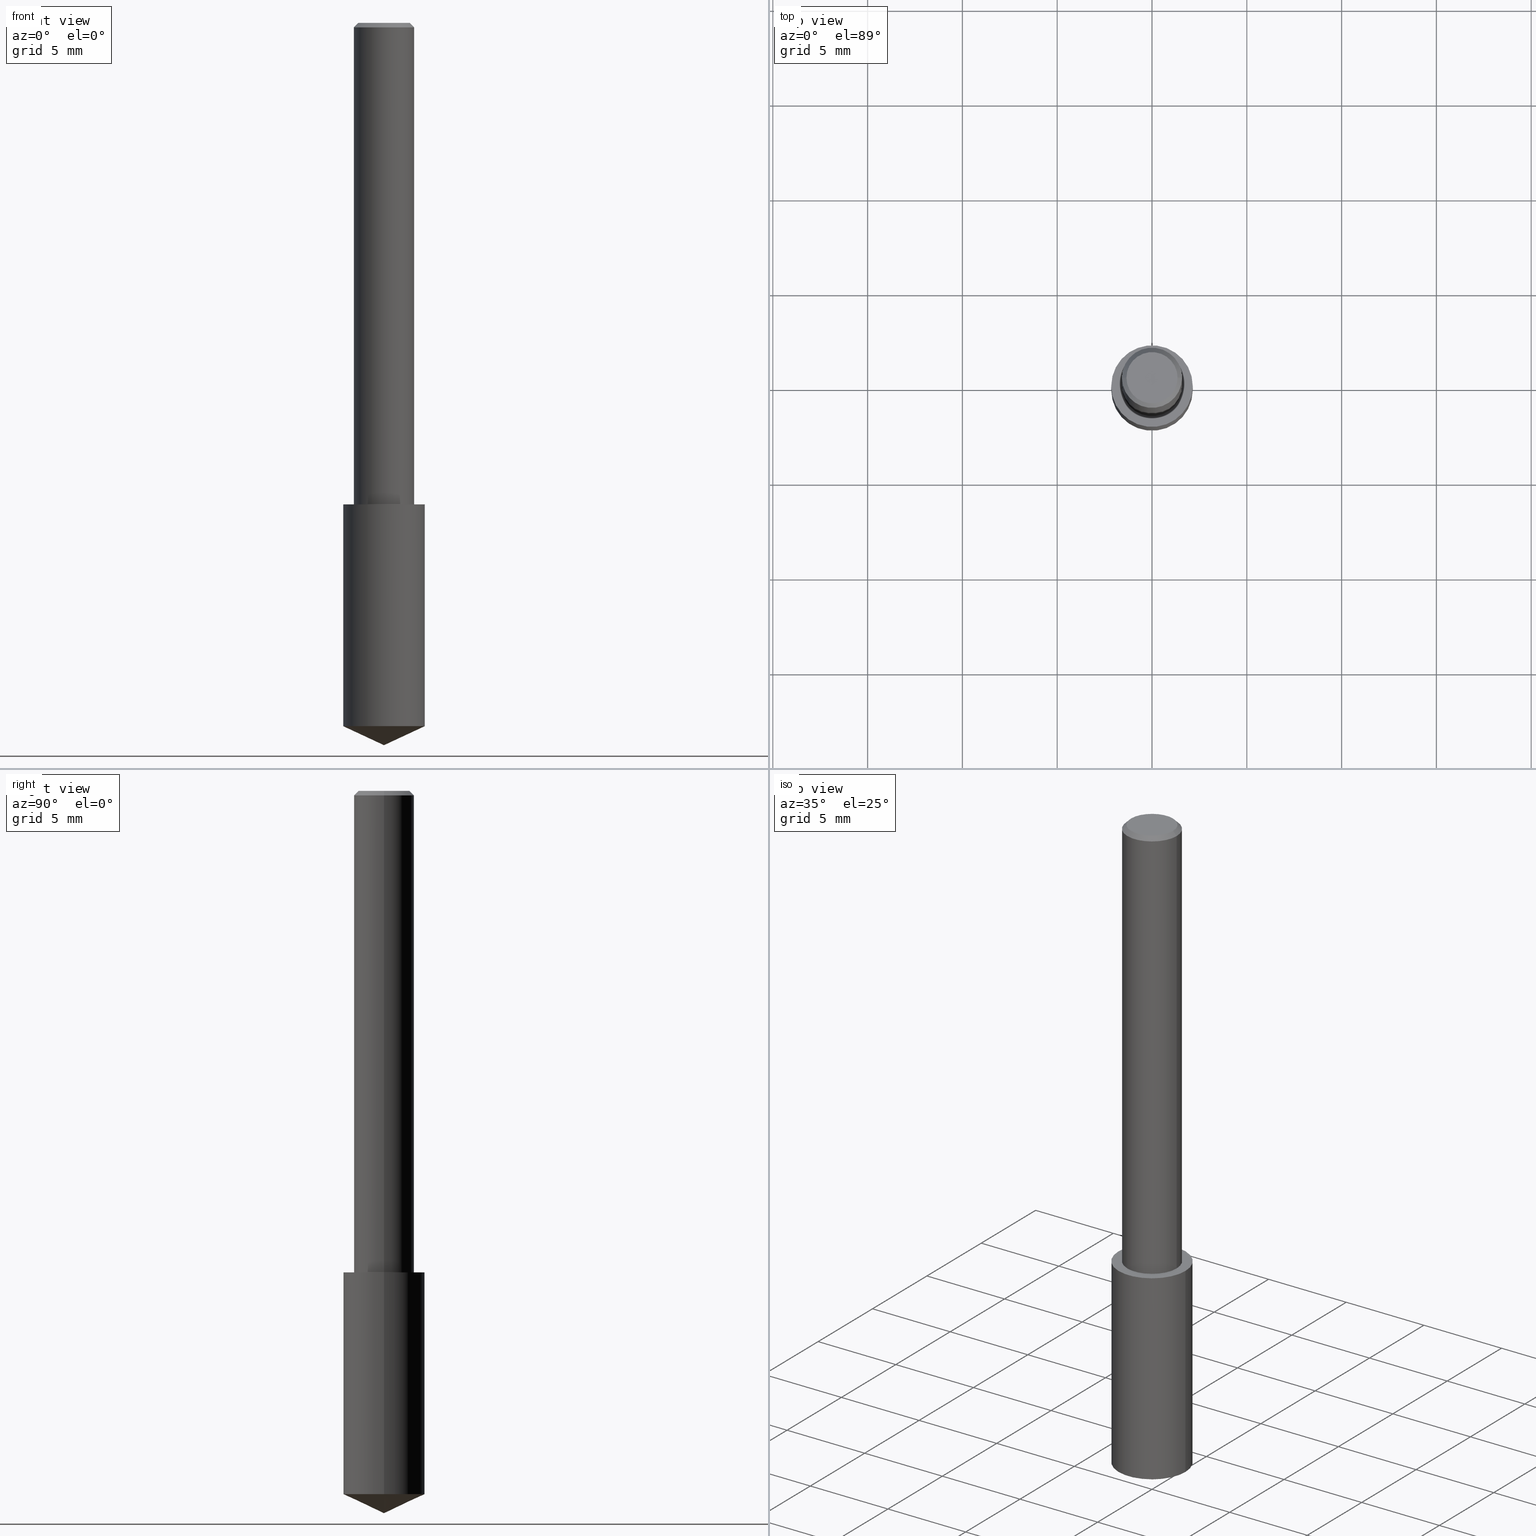
[diagram: canonical four-view strip — front | top / right | iso, engineering-drawing reading convention]
A machine part, canonical four-view strip (front | top / right | iso — engineering-drawing reading convention). The complete STEP part file that produces these views, byte-faithful:
ISO-10303-21;
HEADER;
FILE_DESCRIPTION (( 'STEP AP203' ),
    '1' );
FILE_NAME ('06105.STEP',
    '2024-04-30T18:20:42',
    ( '' ),
    ( '' ),
    'SwSTEP 2.0',
    'SolidWorks 2023',
    '' );
FILE_SCHEMA (( 'CONFIG_CONTROL_DESIGN' ));
ENDSEC;

DATA;
#1 = DIRECTION ( 'NONE',  ( -2.445468806185136597E-29, 3.491481338843145583E-15, 1.000000000000000000 ) ) ;
#2 = APPROVAL_ROLE ( '' ) ;
#3 = ORIENTED_EDGE ( 'NONE', *, *, #304, .T. ) ;
#4 = CALENDAR_DATE ( 2024, 30, 4 ) ;
#5 = AXIS2_PLACEMENT_3D ( 'NONE', #202, #18, #180 ) ;
#6 =( GEOMETRIC_REPRESENTATION_CONTEXT ( 3 ) GLOBAL_UNCERTAINTY_ASSIGNED_CONTEXT ( ( #278 ) ) GLOBAL_UNIT_ASSIGNED_CONTEXT ( ( #165, #98, #265 ) ) REPRESENTATION_CONTEXT ( 'NONE', 'WORKASPACE' ) );
#7 = COORDINATED_UNIVERSAL_TIME_OFFSET ( 5, 0, .BEHIND. ) ;
#8 = PRODUCT_RELATED_PRODUCT_CATEGORY ( 'detail', '', ( #251 ) ) ;
#9 = PERSON_AND_ORGANIZATION_ROLE ( 'design_owner' ) ;
#10 = ORIENTED_EDGE ( 'NONE', *, *, #247, .F. ) ;
#11 = CIRCLE ( 'NONE', #110, 0.06250000000000000000 ) ;
#12 = EDGE_CURVE ( 'NONE', #134, #55, #68, .T. ) ;
#13 = EDGE_LOOP ( 'NONE', ( #170, #178, #299, #275 ) ) ;
#14 = CARTESIAN_POINT ( 'NONE',  ( 3.571673357840160726E-29, -5.099402963473365069E-15, -1.460527056737179308 ) ) ;
#15 = FACE_OUTER_BOUND ( 'NONE', #109, .T. ) ;
#16 = VECTOR ( 'NONE', #305, 39.37007874015748143 ) ;
#17 = ORGANIZATION ( 'UNSPECIFIED', 'UNSPECIFIED', '' ) ;
#18 = DIRECTION ( 'NONE',  ( 2.445468806185136597E-29, -3.491481338843145583E-15, -1.000000000000000000 ) ) ;
#19 = ADVANCED_FACE ( 'NONE', ( #254 ), #26, .T. ) ;
#20 = DIRECTION ( 'NONE',  ( 1.000000000000000000, -6.982962677686266711E-15, 4.876176775795935793E-29 ) ) ;
#21 = ADVANCED_FACE ( 'NONE', ( #15 ), #204, .T. ) ;
#22 = DIRECTION ( 'NONE',  ( -1.000000000000000000, 6.982962677686265922E-15, -4.876176775795935793E-29 ) ) ;
#23 = ORIENTED_EDGE ( 'NONE', *, *, #12, .T. ) ;
#24 = VERTEX_POINT ( 'NONE', #231 ) ;
#25 = DIRECTION ( 'NONE',  ( -2.445468806185136597E-29, 3.491481338843145583E-15, 1.000000000000000000 ) ) ;
#26 = CONICAL_SURFACE ( 'NONE', #5, 0.06250000000000000000, 0.7853981633974450594 ) ;
#27 = DIRECTION ( 'NONE',  ( 0.9063077870366489375, -4.853149677051365379E-15, 0.4226182617407013842 ) ) ;
#28 = FACE_OUTER_BOUND ( 'NONE', #53, .T. ) ;
#29 = DATE_TIME_ROLE ( 'classification_date' ) ;
#30 = DATE_AND_TIME ( #99, #145 ) ;
#31 = AXIS2_PLACEMENT_3D ( 'NONE', #131, #125, #316 ) ;
#32 = ORIENTED_EDGE ( 'NONE', *, *, #94, .F. ) ;
#33 = ADVANCED_FACE ( 'NONE', ( #144 ), #58, .T. ) ;
#34 = ORIENTED_EDGE ( 'NONE', *, *, #75, .F. ) ;
#35 = CIRCLE ( 'NONE', #42, 0.08465000000000001690 ) ;
#36 = EDGE_CURVE ( 'NONE', #82, #76, #227, .T. ) ;
#37 = CC_DESIGN_DATE_AND_TIME_ASSIGNMENT ( #323, #29, ( #339 ) ) ;
#38 = FACE_OUTER_BOUND ( 'NONE', #222, .T. ) ;
#39 = CYLINDRICAL_SURFACE ( 'NONE', #319, 0.08465000000000001690 ) ;
#40 = FACE_OUTER_BOUND ( 'NONE', #276, .T. ) ;
#41 = AXIS2_PLACEMENT_3D ( 'NONE', #114, #115, #256 ) ;
#42 = AXIS2_PLACEMENT_3D ( 'NONE', #262, #25, #237 ) ;
#43 = DIRECTION ( 'NONE',  ( 1.000000000000000000, -6.982962677686266711E-15, 4.876176775795935793E-29 ) ) ;
#44 = AXIS2_PLACEMENT_3D ( 'NONE', #241, #1, #46 ) ;
#45 = APPROVAL_DATE_TIME ( #106, #329 ) ;
#46 = DIRECTION ( 'NONE',  ( 1.000000000000000000, -6.982962677686264344E-15, 0.000000000000000000 ) ) ;
#47 = APPROVAL_STATUS ( 'not_yet_approved' ) ;
#48 = ORIENTED_EDGE ( 'NONE', *, *, #70, .T. ) ;
#49 = CALENDAR_DATE ( 2024, 30, 4 ) ;
#50 = VECTOR ( 'NONE', #153, 39.37007874015748143 ) ;
#51 = ORIENTED_EDGE ( 'NONE', *, *, #36, .F. ) ;
#52 = DATE_AND_TIME ( #49, #295 ) ;
#53 = EDGE_LOOP ( 'NONE', ( #174, #257, #219, #224 ) ) ;
#54 = ORIENTED_EDGE ( 'NONE', *, *, #70, .F. ) ;
#55 = VERTEX_POINT ( 'NONE', #229 ) ;
#56 = DIRECTION ( 'NONE',  ( -2.445468806185136597E-29, 3.491481338843145583E-15, 1.000000000000000000 ) ) ;
#57 = CIRCLE ( 'NONE', #44, 0.06250000000000012490 ) ;
#58 = CYLINDRICAL_SURFACE ( 'NONE', #179, 0.08465000000000001690 ) ;
#59 = CC_DESIGN_PERSON_AND_ORGANIZATION_ASSIGNMENT ( #240, #315, ( #206 ) ) ;
#60 = CARTESIAN_POINT ( 'NONE',  ( 2.445468806185137438E-29, -3.491481338843146371E-15, -1.000000000000000222 ) ) ;
#61 = MANIFOLD_SOLID_BREP ( 'Body-Move/Copy2[2]', #197 ) ;
#62 = CARTESIAN_POINT ( 'NONE',  ( 3.668203209277704895E-29, -5.237222008264718177E-15, -1.500000000000000222 ) ) ;
#63 = LOCAL_TIME ( 14, 20, 42.00000000000000000, #246 ) ;
#64 = DIRECTION ( 'NONE',  ( -1.000000000000000000, 6.982962677686266711E-15, 0.000000000000000000 ) ) ;
#65 = ADVANCED_FACE ( 'NONE', ( #86 ), #250, .T. ) ;
#66 = FACE_OUTER_BOUND ( 'NONE', #226, .T. ) ;
#67 = CARTESIAN_POINT ( 'NONE',  ( 0.06250000000000000000, -4.615137624123754923E-16, -0.009375000000000063838 ) ) ;
#68 = CIRCLE ( 'NONE', #306, 0.06250000000000012490 ) ;
#69 = VECTOR ( 'NONE', #27, 39.37007874015748854 ) ;
#70 = EDGE_CURVE ( 'NONE', #203, #149, #11, .T. ) ;
#71 = DIRECTION ( 'NONE',  ( 2.438088387897960049E-29, -3.491481338843145188E-15, -1.000000000000000000 ) ) ;
#72 = DIRECTION ( 'NONE',  ( -2.445468806185136597E-29, 3.491481338843145583E-15, 1.000000000000000000 ) ) ;
#73 = CARTESIAN_POINT ( 'NONE',  ( -7.487088864773345706E-50, 1.068957861474247695E-35, 3.061616997868395197E-21 ) ) ;
#74 = APPROVAL_PERSON_ORGANIZATION ( #132, #324, #2 ) ;
#75 = EDGE_CURVE ( 'NONE', #81, #82, #113, .T. ) ;
#76 = VERTEX_POINT ( 'NONE', #234 ) ;
#77 = PERSON_AND_ORGANIZATION ( #123, #17 ) ;
#78 = EDGE_CURVE ( 'NONE', #55, #203, #280, .T. ) ;
#79 = ORIENTED_EDGE ( 'NONE', *, *, #288, .F. ) ;
#80 = APPROVAL_ROLE ( '' ) ;
#81 = VERTEX_POINT ( 'NONE', #62 ) ;
#82 = VERTEX_POINT ( 'NONE', #120 ) ;
#83 = ORIENTED_EDGE ( 'NONE', *, *, #159, .T. ) ;
#84 = DIRECTION ( 'NONE',  ( -2.445468806185136597E-29, 3.491481338843145583E-15, 1.000000000000000000 ) ) ;
#85 = CC_DESIGN_SECURITY_CLASSIFICATION ( #339, ( #206 ) ) ;
#86 = FACE_OUTER_BOUND ( 'NONE', #298, .T. ) ;
#87 = VERTEX_POINT ( 'NONE', #152 ) ;
#88 = ADVANCED_FACE ( 'NONE', ( #38 ), #259, .T. ) ;
#89 = LINE ( 'NONE', #271, #69 ) ;
#90 = DIRECTION ( 'NONE',  ( 1.000000000000000000, -6.982962677686266711E-15, 4.876176628004948512E-29 ) ) ;
#91 = EDGE_LOOP ( 'NONE', ( #277, #143, #48, #244 ) ) ;
#92 = DIRECTION ( 'NONE',  ( -2.445468806185136597E-29, 3.491481338843145583E-15, 1.000000000000000000 ) ) ;
#93 = DIRECTION ( 'NONE',  ( -2.445468806185136597E-29, 3.491481338843145583E-15, 1.000000000000000000 ) ) ;
#94 = EDGE_CURVE ( 'NONE', #134, #149, #309, .T. ) ;
#95 = DIRECTION ( 'NONE',  ( 1.000000000000000000, -6.982962677686269077E-15, 0.000000000000000000 ) ) ;
#96 = AXIS2_PLACEMENT_3D ( 'NONE', #290, #71, #22 ) ;
#97 = CYLINDRICAL_SURFACE ( 'NONE', #139, 0.06250000000000006939 ) ;
#98 =( NAMED_UNIT ( * ) PLANE_ANGLE_UNIT ( ) SI_UNIT ( $, .RADIAN. ) );
#99 = CALENDAR_DATE ( 2024, 30, 4 ) ;
#100 = DIRECTION ( 'NONE',  ( 1.000000000000000000, -6.982962677686266711E-15, 0.000000000000000000 ) ) ;
#101 = CC_DESIGN_PERSON_AND_ORGANIZATION_ASSIGNMENT ( #77, #166, ( #206 ) ) ;
#102 = DIRECTION ( 'NONE',  ( 1.000000000000000000, -6.982962677686266711E-15, 4.876176628004948512E-29 ) ) ;
#103 = EDGE_LOOP ( 'NONE', ( #148, #83 ) ) ;
#104 = AXIS2_PLACEMENT_3D ( 'NONE', #163, #72, #102 ) ;
#105 = PERSON_AND_ORGANIZATION ( #123, #17 ) ;
#106 = DATE_AND_TIME ( #195, #307 ) ;
#107 = APPROVAL_STATUS ( 'not_yet_approved' ) ;
#108 = ADVANCED_FACE ( 'NONE', ( #66 ), #97, .T. ) ;
#109 = EDGE_LOOP ( 'NONE', ( #34, #293, #51 ) ) ;
#110 = AXIS2_PLACEMENT_3D ( 'NONE', #205, #302, #175 ) ;
#111 = DIRECTION ( 'NONE',  ( 0.000000000000000000, 0.000000000000000000, 1.000000000000000000 ) ) ;
#112 = ORIENTED_EDGE ( 'NONE', *, *, #300, .T. ) ;
#113 = LINE ( 'NONE', #182, #160 ) ;
#114 = CARTESIAN_POINT ( 'NONE',  ( -9.261009624683002666E-28, 1.322226732217803884E-13, 37.87007874015748143 ) ) ;
#115 = DIRECTION ( 'NONE',  ( -2.445468806185136597E-29, 3.491481338843145583E-15, 1.000000000000000000 ) ) ;
#116 = VECTOR ( 'NONE', #284, 39.37007874015748143 ) ;
#117 = DIRECTION ( 'NONE',  ( 1.000000000000000000, -6.982962677686263555E-15, 0.000000000000000000 ) ) ;
#118 = ORIENTED_EDGE ( 'NONE', *, *, #94, .T. ) ;
#119 = ADVANCED_FACE ( 'NONE', ( #155 ), #310, .F. ) ;
#120 = CARTESIAN_POINT ( 'NONE',  ( -0.08464999999999998914, -4.497928537652440240E-15, -1.460527056737179308 ) ) ;
#121 = AXIS2_PLACEMENT_3D ( 'NONE', #209, #308, #64 ) ;
#122 = DIRECTION ( 'NONE',  ( -0.7071067811865452413, 2.468850131082233000E-15, -0.7071067811865497932 ) ) ;
#123 = PERSON ( 'UNSPECIFIED', 'UNSPECIFIED', 'UNSPECIFIED', ('UNSPECIFIED'), ('UNSPECIFIED'), ('UNSPECIFIED') ) ;
#124 = CARTESIAN_POINT ( 'NONE',  ( 0.000000000000000000, 0.000000000000000000, 0.000000000000000000 ) ) ;
#125 = DIRECTION ( 'NONE',  ( 2.438088387897960049E-29, -3.491481338843145188E-15, -1.000000000000000000 ) ) ;
#126 = DIRECTION ( 'NONE',  ( 1.000000000000000000, -6.982962677686265922E-15, 4.876176775795935793E-29 ) ) ;
#127 = EDGE_CURVE ( 'NONE', #76, #82, #334, .T. ) ;
#128 = LINE ( 'NONE', #67, #214 ) ;
#129 = CARTESIAN_POINT ( 'NONE',  ( 0.08465000000000001690, -4.082589129509289174E-15, -1.000000000000000222 ) ) ;
#130 = DATE_AND_TIME ( #4, #63 ) ;
#131 = CARTESIAN_POINT ( 'NONE',  ( -3.743544432386672853E-50, 5.344789307371238476E-36, 1.530808498934197599E-21 ) ) ;
#132 = PERSON_AND_ORGANIZATION ( #123, #17 ) ;
#133 = APPLICATION_PROTOCOL_DEFINITION ( 'international standard', 'config_control_design', 1994, #321 ) ;
#134 = VERTEX_POINT ( 'NONE', #266 ) ;
#135 = PERSON_AND_ORGANIZATION ( #123, #17 ) ;
#136 = LINE ( 'NONE', #239, #301 ) ;
#137 = AXIS2_PLACEMENT_3D ( 'NONE', #14, #208, #230 ) ;
#138 = ORIENTED_EDGE ( 'NONE', *, *, #296, .T. ) ;
#139 = AXIS2_PLACEMENT_3D ( 'NONE', #213, #186, #43 ) ;
#140 = APPROVAL_STATUS ( 'not_yet_approved' ) ;
#141 = APPLICATION_PROTOCOL_DEFINITION ( 'international standard', 'config_control_design', 1994, #336 ) ;
#142 = VERTEX_POINT ( 'NONE', #129 ) ;
#143 = ORIENTED_EDGE ( 'NONE', *, *, #211, .T. ) ;
#144 = FACE_OUTER_BOUND ( 'NONE', #167, .T. ) ;
#145 = LOCAL_TIME ( 14, 20, 42.00000000000000000, #168 ) ;
#146 = ADVANCED_BREP_SHAPE_REPRESENTATION ( '06105', ( #294, #61, #171 ), #6 ) ;
#147 = DIRECTION ( 'NONE',  ( 1.000000000000000000, -6.982962677686264344E-15, 0.000000000000000000 ) ) ;
#148 = ORIENTED_EDGE ( 'NONE', *, *, #191, .T. ) ;
#149 = VERTEX_POINT ( 'NONE', #215 ) ;
#150 = ADVANCED_FACE ( 'NONE', ( #184 ), #193, .T. ) ;
#151 = CC_DESIGN_APPROVAL ( #176, ( #206 ) ) ;
#152 = CARTESIAN_POINT ( 'NONE',  ( 0.05312499999999999861, -4.129888592719939842E-16, 3.061617000609493422E-21 ) ) ;
#153 = DIRECTION ( 'NONE',  ( -2.445468806185136877E-29, 3.491481338843145188E-15, 1.000000000000000000 ) ) ;
#154 = CC_DESIGN_PERSON_AND_ORGANIZATION_ASSIGNMENT ( #105, #291, ( #339 ) ) ;
#155 = FACE_OUTER_BOUND ( 'NONE', #200, .T. ) ;
#156 = LENGTH_MEASURE_WITH_UNIT ( LENGTH_MEASURE( 0.02539999999999999897 ), #340 );
#157 = DIRECTION ( 'NONE',  ( -2.438088387897960049E-29, 3.491481338843145188E-15, 1.000000000000000000 ) ) ;
#158 = CARTESIAN_POINT ( 'NONE',  ( 2.445468806185136877E-29, -3.491481338843145977E-15, -1.000000000000000222 ) ) ;
#159 = EDGE_CURVE ( 'NONE', #87, #24, #218, .T. ) ;
#160 = VECTOR ( 'NONE', #183, 39.37007874015748854 ) ;
#161 = CARTESIAN_POINT ( 'NONE',  ( -0.08465000000000001690, -3.693967725337331089E-15, -1.000000000000000222 ) ) ;
#162 = APPROVAL_PERSON_ORGANIZATION ( #220, #176, #317 ) ;
#163 = CARTESIAN_POINT ( 'NONE',  ( -7.487088864773345706E-50, 1.068957861474247695E-35, 3.061616997868395197E-21 ) ) ;
#164 = SHAPE_DEFINITION_REPRESENTATION ( #255, #146 ) ;
#165 =( CONVERSION_BASED_UNIT ( 'INCH', #156 ) LENGTH_UNIT ( ) NAMED_UNIT ( #177 ) );
#166 = PERSON_AND_ORGANIZATION_ROLE ( 'design_supplier' ) ;
#167 = EDGE_LOOP ( 'NONE', ( #10, #285, #138, #248 ) ) ;
#168 = COORDINATED_UNIVERSAL_TIME_OFFSET ( 5, 0, .BEHIND. ) ;
#169 = AXIS2_PLACEMENT_3D ( 'NONE', #303, #84, #330 ) ;
#170 = ORIENTED_EDGE ( 'NONE', *, *, #211, .F. ) ;
#171 = AXIS2_PLACEMENT_3D ( 'NONE', #320, #111, #223 ) ;
#172 = ORIENTED_EDGE ( 'NONE', *, *, #273, .F. ) ;
#173 = APPROVAL_DATE_TIME ( #52, #176 ) ;
#174 = ORIENTED_EDGE ( 'NONE', *, *, #127, .T. ) ;
#175 = DIRECTION ( 'NONE',  ( 1.000000000000000000, -6.982962677686266711E-15, 0.000000000000000000 ) ) ;
#176 = APPROVAL ( #47, 'UNSPECIFIED' ) ;
#177 = DIMENSIONAL_EXPONENTS ( 1.000000000000000000, 0.000000000000000000, 0.000000000000000000, 0.000000000000000000, 0.000000000000000000, 0.000000000000000000, 0.000000000000000000 ) ;
#178 = ORIENTED_EDGE ( 'NONE', *, *, #191, .F. ) ;
#179 = AXIS2_PLACEMENT_3D ( 'NONE', #60, #249, #117 ) ;
#180 = DIRECTION ( 'NONE',  ( -1.000000000000000000, 6.982962677686266711E-15, 0.000000000000000000 ) ) ;
#181 = CIRCLE ( 'NONE', #289, 0.08465000000000001690 ) ;
#182 = CARTESIAN_POINT ( 'NONE',  ( 3.668203209277704895E-29, -5.237222008264718177E-15, -1.500000000000000222 ) ) ;
#183 = DIRECTION ( 'NONE',  ( -0.9063077870366489375, 7.915267918739014631E-15, 0.4226182617407013842 ) ) ;
#184 = FACE_OUTER_BOUND ( 'NONE', #13, .T. ) ;
#185 = DIRECTION ( 'NONE',  ( -2.445468806185136597E-29, 3.491481338843145583E-15, 1.000000000000000000 ) ) ;
#186 = DIRECTION ( 'NONE',  ( -2.445468806185136597E-29, 3.491481338843145583E-15, 1.000000000000000000 ) ) ;
#187 = FACE_OUTER_BOUND ( 'NONE', #103, .T. ) ;
#188 = CARTESIAN_POINT ( 'NONE',  ( -0.06250000000000006939, 4.440892098500631092E-16, -3.074334431409319267E-30 ) ) ;
#189 = AXIS2_PLACEMENT_3D ( 'NONE', #73, #272, #90 ) ;
#190 = ORIENTED_EDGE ( 'NONE', *, *, #78, .T. ) ;
#191 = EDGE_CURVE ( 'NONE', #24, #87, #312, .T. ) ;
#192 = PERSON_AND_ORGANIZATION ( #123, #17 ) ;
#193 = CONICAL_SURFACE ( 'NONE', #121, 0.06250000000000000000, 0.7853981633974450594 ) ;
#194 = COORDINATED_UNIVERSAL_TIME_OFFSET ( 5, 0, .BEHIND. ) ;
#195 = CALENDAR_DATE ( 2024, 30, 4 ) ;
#196 = ADVANCED_FACE ( 'NONE', ( #28 ), #39, .T. ) ;
#197 = CLOSED_SHELL ( 'NONE', ( #19, #108, #119, #88, #150, #243 ) ) ;
#198 = LOCAL_TIME ( 14, 20, 42.00000000000000000, #7 ) ;
#199 = COORDINATED_UNIVERSAL_TIME_OFFSET ( 5, 0, .BEHIND. ) ;
#200 = EDGE_LOOP ( 'NONE', ( #79, #228 ) ) ;
#201 = EDGE_CURVE ( 'NONE', #24, #149, #136, .T. ) ;
#202 = CARTESIAN_POINT ( 'NONE',  ( 2.292627005798581499E-31, -3.273263755165471417E-17, -0.009375000000000063838 ) ) ;
#203 = VERTEX_POINT ( 'NONE', #236 ) ;
#204 = CONICAL_SURFACE ( 'NONE', #41, 84.42940631927346828, 1.134464013796312010 ) ;
#205 = CARTESIAN_POINT ( 'NONE',  ( 2.292627005798581499E-31, -3.273263755165471417E-17, -0.009375000000000063838 ) ) ;
#206 = PRODUCT_DEFINITION_FORMATION_WITH_SPECIFIED_SOURCE ( 'ANY', '', #251, .NOT_KNOWN. ) ;
#207 = CARTESIAN_POINT ( 'NONE',  ( 2.445468806185137438E-29, -3.491481338843146371E-15, -1.000000000000000222 ) ) ;
#208 = DIRECTION ( 'NONE',  ( -2.445468806185136597E-29, 3.491481338843145583E-15, 1.000000000000000000 ) ) ;
#209 = CARTESIAN_POINT ( 'NONE',  ( 2.292627005798581499E-31, -3.273263755165471417E-17, -0.009375000000000063838 ) ) ;
#210 = VECTOR ( 'NONE', #337, 39.37007874015748143 ) ;
#211 = EDGE_CURVE ( 'NONE', #87, #203, #128, .T. ) ;
#212 = LINE ( 'NONE', #338, #50 ) ;
#213 = CARTESIAN_POINT ( 'NONE',  ( 0.000000000000000000, 0.000000000000000000, 0.000000000000000000 ) ) ;
#214 = VECTOR ( 'NONE', #313, 39.37007874015748143 ) ;
#215 = CARTESIAN_POINT ( 'NONE',  ( -0.06250000000000000000, -1.318017778347336672E-15, -0.009375000000000063838 ) ) ;
#216 = PERSON_AND_ORGANIZATION ( #123, #17 ) ;
#217 = PLANE ( 'NONE',  #96 ) ;
#218 = CIRCLE ( 'NONE', #104, 0.05312499999999999861 ) ;
#219 = ORIENTED_EDGE ( 'NONE', *, *, #300, .F. ) ;
#220 = PERSON_AND_ORGANIZATION ( #123, #17 ) ;
#221 = PRODUCT_DEFINITION ( 'UNKNOWN', '', #206, #253 ) ;
#222 = EDGE_LOOP ( 'NONE', ( #32, #23, #190, #263 ) ) ;
#223 = DIRECTION ( 'NONE',  ( 1.000000000000000000, 0.000000000000000000, 0.000000000000000000 ) ) ;
#224 = ORIENTED_EDGE ( 'NONE', *, *, #296, .F. ) ;
#225 = DATE_TIME_ROLE ( 'creation_date' ) ;
#226 = EDGE_LOOP ( 'NONE', ( #327, #118, #54, #322 ) ) ;
#227 = CIRCLE ( 'NONE', #137, 0.08465000000000001690 ) ;
#228 = ORIENTED_EDGE ( 'NONE', *, *, #12, .F. ) ;
#229 = CARTESIAN_POINT ( 'NONE',  ( 0.06250000000000012490, -3.927916506198539224E-15, -1.000000000000000222 ) ) ;
#230 = DIRECTION ( 'NONE',  ( 1.000000000000000000, -6.982962677686269077E-15, 0.000000000000000000 ) ) ;
#231 = CARTESIAN_POINT ( 'NONE',  ( -0.05312499999999999861, 3.873362110279099094E-16, 3.061616995216862494E-21 ) ) ;
#232 = AXIS2_PLACEMENT_3D ( 'NONE', #235, #93, #333 ) ;
#233 = CC_DESIGN_PERSON_AND_ORGANIZATION_ASSIGNMENT ( #216, #9, ( #251 ) ) ;
#234 = CARTESIAN_POINT ( 'NONE',  ( 0.08464999999999998914, -5.690510754139508265E-15, -1.460527056737179308 ) ) ;
#235 = CARTESIAN_POINT ( 'NONE',  ( 3.571673357840160726E-29, -5.099402963473365069E-15, -1.460527056737179308 ) ) ;
#236 = CARTESIAN_POINT ( 'NONE',  ( 0.06250000000000000000, -4.691678049070464390E-16, -0.009375000000000063838 ) ) ;
#237 = DIRECTION ( 'NONE',  ( 1.000000000000000000, -6.982962677686269077E-15, 0.000000000000000000 ) ) ;
#238 = ADVANCED_FACE ( 'NONE', ( #40 ), #217, .F. ) ;
#239 = CARTESIAN_POINT ( 'NONE',  ( -0.06250000000000000000, 4.037025298037369491E-16, -0.009375000000000063838 ) ) ;
#240 = PERSON_AND_ORGANIZATION ( #123, #17 ) ;
#241 = CARTESIAN_POINT ( 'NONE',  ( 2.445468806185137438E-29, -3.491481338843146371E-15, -1.000000000000000222 ) ) ;
#242 = APPROVAL_DATE_TIME ( #30, #324 ) ;
#243 = ADVANCED_FACE ( 'NONE', ( #187 ), #335, .F. ) ;
#244 = ORIENTED_EDGE ( 'NONE', *, *, #201, .F. ) ;
#245 = CC_DESIGN_APPROVAL ( #329, ( #339 ) ) ;
#246 = COORDINATED_UNIVERSAL_TIME_OFFSET ( 5, 0, .BEHIND. ) ;
#247 = EDGE_CURVE ( 'NONE', #82, #268, #283, .T. ) ;
#248 = ORIENTED_EDGE ( 'NONE', *, *, #304, .F. ) ;
#249 = DIRECTION ( 'NONE',  ( -2.445468806185136597E-29, 3.491481338843145583E-15, 1.000000000000000000 ) ) ;
#250 = CONICAL_SURFACE ( 'NONE', #169, 84.42940631927346828, 1.134464013796312010 ) ;
#251 = PRODUCT ( '06105', '06105', '', ( #292 ) ) ;
#252 = AXIS2_PLACEMENT_3D ( 'NONE', #124, #185, #20 ) ;
#253 = DESIGN_CONTEXT ( 'detailed design', #336, 'design' ) ;
#254 = FACE_OUTER_BOUND ( 'NONE', #91, .T. ) ;
#255 = PRODUCT_DEFINITION_SHAPE ( 'NONE', 'NONE',  #221 ) ;
#256 = DIRECTION ( 'NONE',  ( 1.000000000000000000, -6.982962677686268288E-15, 0.000000000000000000 ) ) ;
#257 = ORIENTED_EDGE ( 'NONE', *, *, #247, .T. ) ;
#258 = CIRCLE ( 'NONE', #331, 0.06250000000000000000 ) ;
#259 = CYLINDRICAL_SURFACE ( 'NONE', #252, 0.06250000000000006939 ) ;
#260 = CC_DESIGN_DATE_AND_TIME_ASSIGNMENT ( #130, #225, ( #221 ) ) ;
#261 = AXIS2_PLACEMENT_3D ( 'NONE', #264, #157, #126 ) ;
#262 = CARTESIAN_POINT ( 'NONE',  ( 2.445468806185136877E-29, -3.491481338843145977E-15, -1.000000000000000222 ) ) ;
#263 = ORIENTED_EDGE ( 'NONE', *, *, #314, .F. ) ;
#264 = CARTESIAN_POINT ( 'NONE',  ( 2.445468806185137438E-29, -3.491481338843146371E-15, -1.000000000000000222 ) ) ;
#265 =( NAMED_UNIT ( * ) SI_UNIT ( $, .STERADIAN. ) SOLID_ANGLE_UNIT ( ) );
#266 = CARTESIAN_POINT ( 'NONE',  ( -0.06250000000000012490, -1.318017778347335489E-15, -1.000000000000000222 ) ) ;
#267 = CC_DESIGN_PERSON_AND_ORGANIZATION_ASSIGNMENT ( #192, #287, ( #221 ) ) ;
#268 = VERTEX_POINT ( 'NONE', #161 ) ;
#269 = DIRECTION ( 'NONE',  ( -2.445468806185136597E-29, 3.491481338843145583E-15, 1.000000000000000000 ) ) ;
#270 = APPROVAL_PERSON_ORGANIZATION ( #135, #329, #80 ) ;
#271 = CARTESIAN_POINT ( 'NONE',  ( 3.668203209277704895E-29, -5.237222008264718177E-15, -1.500000000000000222 ) ) ;
#272 = DIRECTION ( 'NONE',  ( -2.445468806185136597E-29, 3.491481338843145583E-15, 1.000000000000000000 ) ) ;
#273 = EDGE_CURVE ( 'NONE', #81, #76, #89, .T. ) ;
#274 = CALENDAR_DATE ( 2024, 30, 4 ) ;
#275 = ORIENTED_EDGE ( 'NONE', *, *, #314, .T. ) ;
#276 = EDGE_LOOP ( 'NONE', ( #112, #3 ) ) ;
#277 = ORIENTED_EDGE ( 'NONE', *, *, #159, .F. ) ;
#278 = UNCERTAINTY_MEASURE_WITH_UNIT (LENGTH_MEASURE( 1.000000000000000082E-05 ), #165, 'distance_accuracy_value', 'NONE');
#279 = CC_DESIGN_APPROVAL ( #324, ( #221 ) ) ;
#280 = LINE ( 'NONE', #332, #16 ) ;
#281 = CARTESIAN_POINT ( 'NONE',  ( -0.08465000000000001690, -2.890006913022221543E-15, -1.000000000000000222 ) ) ;
#282 = CARTESIAN_POINT ( 'NONE',  ( 2.445468806185137438E-29, -3.491481338843146371E-15, -1.000000000000000222 ) ) ;
#283 = LINE ( 'NONE', #281, #210 ) ;
#284 = DIRECTION ( 'NONE',  ( -2.445468806185136877E-29, 3.491481338843145188E-15, 1.000000000000000000 ) ) ;
#285 = ORIENTED_EDGE ( 'NONE', *, *, #36, .T. ) ;
#286 = DIRECTION ( 'NONE',  ( -2.445468806185136597E-29, 3.491481338843145583E-15, 1.000000000000000000 ) ) ;
#287 = PERSON_AND_ORGANIZATION_ROLE ( 'creator' ) ;
#288 = EDGE_CURVE ( 'NONE', #55, #134, #57, .T. ) ;
#289 = AXIS2_PLACEMENT_3D ( 'NONE', #158, #92, #95 ) ;
#290 = CARTESIAN_POINT ( 'NONE',  ( 3.572249230335736958E-29, -1.877867639100521778E-15, -1.000000000000000222 ) ) ;
#291 = PERSON_AND_ORGANIZATION_ROLE ( 'classification_officer' ) ;
#292 = MECHANICAL_CONTEXT ( 'NONE', #321, 'mechanical' ) ;
#293 = ORIENTED_EDGE ( 'NONE', *, *, #273, .T. ) ;
#294 = MANIFOLD_SOLID_BREP ( 'Body-Move/Copy2[1]', #326 ) ;
#295 = LOCAL_TIME ( 14, 20, 42.00000000000000000, #194 ) ;
#296 = EDGE_CURVE ( 'NONE', #76, #142, #212, .T. ) ;
#297 = ORIENTED_EDGE ( 'NONE', *, *, #127, .F. ) ;
#298 = EDGE_LOOP ( 'NONE', ( #172, #328, #297 ) ) ;
#299 = ORIENTED_EDGE ( 'NONE', *, *, #201, .T. ) ;
#300 = EDGE_CURVE ( 'NONE', #142, #268, #181, .T. ) ;
#301 = VECTOR ( 'NONE', #122, 39.37007874015748143 ) ;
#302 = DIRECTION ( 'NONE',  ( -2.445468806185136597E-29, 3.491481338843145583E-15, 1.000000000000000000 ) ) ;
#303 = CARTESIAN_POINT ( 'NONE',  ( -9.261009624683002666E-28, 1.322226732217803884E-13, 37.87007874015748143 ) ) ;
#304 = EDGE_CURVE ( 'NONE', #268, #142, #35, .T. ) ;
#305 = DIRECTION ( 'NONE',  ( -2.445468806185136877E-29, 3.491481338843145188E-15, 1.000000000000000000 ) ) ;
#306 = AXIS2_PLACEMENT_3D ( 'NONE', #207, #56, #147 ) ;
#307 = LOCAL_TIME ( 14, 20, 42.00000000000000000, #199 ) ;
#308 = DIRECTION ( 'NONE',  ( 2.445468806185136597E-29, -3.491481338843145583E-15, -1.000000000000000000 ) ) ;
#309 = LINE ( 'NONE', #188, #116 ) ;
#310 = PLANE ( 'NONE',  #261 ) ;
#311 = CARTESIAN_POINT ( 'NONE',  ( 2.292627005798581499E-31, -3.273263755165471417E-17, -0.009375000000000063838 ) ) ;
#312 = CIRCLE ( 'NONE', #189, 0.05312499999999999861 ) ;
#313 = DIRECTION ( 'NONE',  ( 0.7071067811865452413, -7.319954787623248157E-15, -0.7071067811865497932 ) ) ;
#314 = EDGE_CURVE ( 'NONE', #149, #203, #258, .T. ) ;
#315 = PERSON_AND_ORGANIZATION_ROLE ( 'creator' ) ;
#316 = DIRECTION ( 'NONE',  ( -1.000000000000000000, 6.982962677686265922E-15, -4.876176775795935793E-29 ) ) ;
#317 = APPROVAL_ROLE ( '' ) ;
#318 = DIRECTION ( 'NONE',  ( 1.000000000000000000, -6.982962677686263555E-15, 0.000000000000000000 ) ) ;
#319 = AXIS2_PLACEMENT_3D ( 'NONE', #282, #286, #318 ) ;
#320 = CARTESIAN_POINT ( 'NONE',  ( 0.000000000000000000, 0.000000000000000000, 0.000000000000000000 ) ) ;
#321 = APPLICATION_CONTEXT ( 'configuration controlled 3d designs of mechanical parts and assemblies' ) ;
#322 = ORIENTED_EDGE ( 'NONE', *, *, #78, .F. ) ;
#323 = DATE_AND_TIME ( #274, #198 ) ;
#324 = APPROVAL ( #107, 'UNSPECIFIED' ) ;
#325 = SECURITY_CLASSIFICATION_LEVEL ( 'unclassified' ) ;
#326 = CLOSED_SHELL ( 'NONE', ( #196, #65, #21, #33, #238 ) ) ;
#327 = ORIENTED_EDGE ( 'NONE', *, *, #288, .T. ) ;
#328 = ORIENTED_EDGE ( 'NONE', *, *, #75, .T. ) ;
#329 = APPROVAL ( #140, 'UNSPECIFIED' ) ;
#330 = DIRECTION ( 'NONE',  ( 1.000000000000000000, -6.982962677686268288E-15, 0.000000000000000000 ) ) ;
#331 = AXIS2_PLACEMENT_3D ( 'NONE', #311, #269, #100 ) ;
#332 = CARTESIAN_POINT ( 'NONE',  ( 0.06250000000000006939, -4.364351673553921624E-16, 3.047610484872463374E-30 ) ) ;
#333 = DIRECTION ( 'NONE',  ( 1.000000000000000000, -6.982962677686269077E-15, 0.000000000000000000 ) ) ;
#334 = CIRCLE ( 'NONE', #232, 0.08465000000000001690 ) ;
#335 = PLANE ( 'NONE',  #31 ) ;
#336 = APPLICATION_CONTEXT ( 'configuration controlled 3d designs of mechanical parts and assemblies' ) ;
#337 = DIRECTION ( 'NONE',  ( -2.445468806185136877E-29, 3.491481338843145188E-15, 1.000000000000000000 ) ) ;
#338 = CARTESIAN_POINT ( 'NONE',  ( 0.08465000000000001690, -4.082589129509289174E-15, -1.000000000000000222 ) ) ;
#339 = SECURITY_CLASSIFICATION ( '', '', #325 ) ;
#340 =( LENGTH_UNIT ( ) NAMED_UNIT ( * ) SI_UNIT ( $, .METRE. ) );
ENDSEC;
END-ISO-10303-21;
